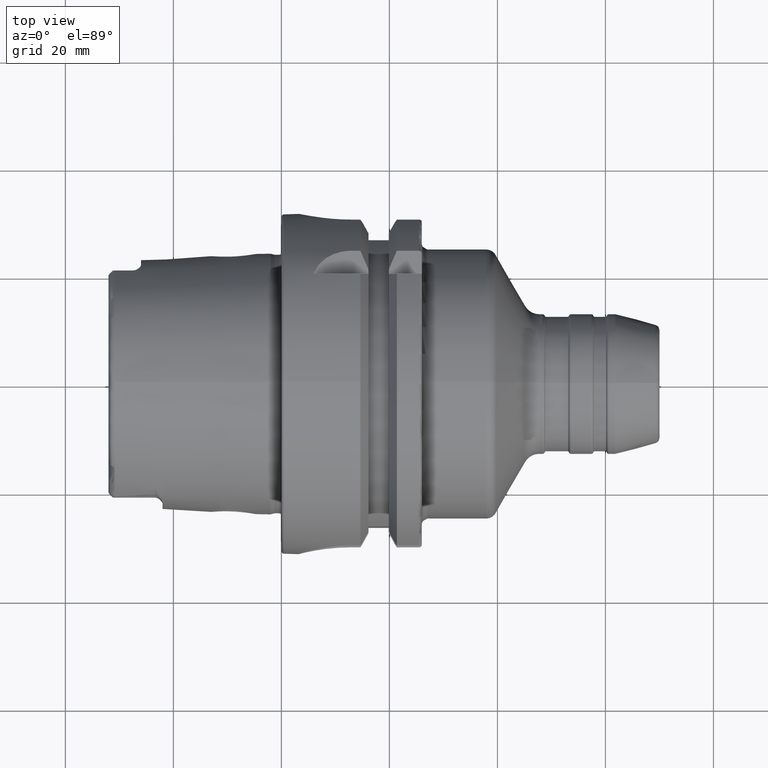
[diagram: clean part render]
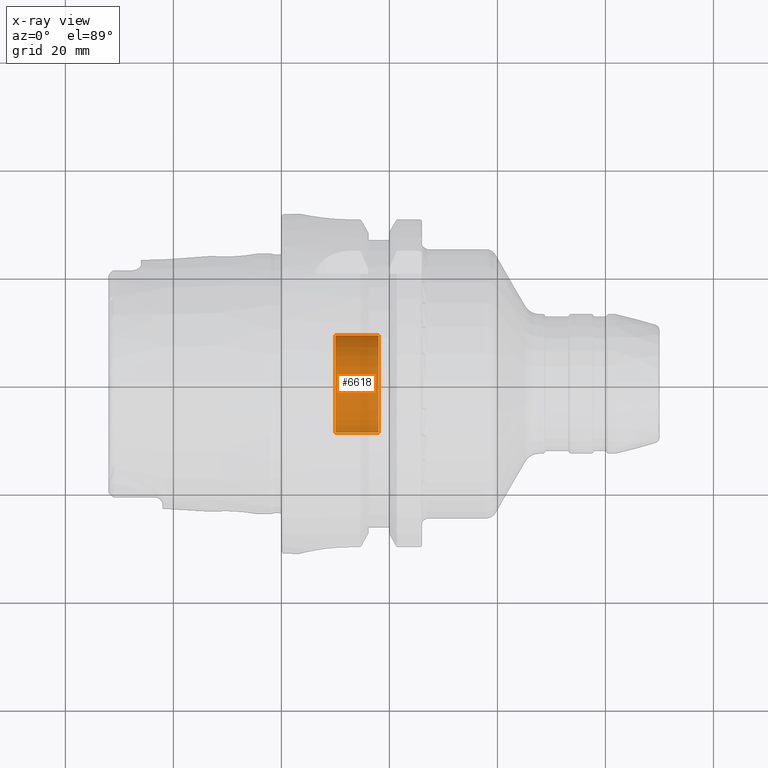
[diagram: x-ray — body ghosted, one internal face saturated and labeled with its STEP entity id]
A machine part, top view, then the same camera in x-ray: the body is ghosted and one INTERNAL B-rep face — a face not visible from any outside direction — is saturated and labeled: STEP entity #6618.
In plain terms, the highlighted cylindrical surface (partial cylindrical patch) has radius 9 mm, axis along (-1, 0, 0).
Its self-contained STEP definition (entity closure, byte-faithful):
#6544=CARTESIAN_POINT('',(1.E1,0.E0,0.E0));
#6545=DIRECTION('',(1.E0,0.E0,0.E0));
#6546=DIRECTION('',(0.E0,1.E0,0.E0));
#6547=AXIS2_PLACEMENT_3D('',#6544,#6545,#6546);
#6549=DIRECTION('',(1.E0,0.E0,0.E0));
#6550=VECTOR('',#6549,8.E0);
#6551=CARTESIAN_POINT('',(1.E1,-9.E0,0.E0));
#6552=LINE('',#6551,#6550);
#6553=DIRECTION('',(1.E0,0.E0,0.E0));
#6554=VECTOR('',#6553,8.E0);
#6555=CARTESIAN_POINT('',(1.E1,9.E0,0.E0));
#6556=LINE('',#6555,#6554);
#6557=CARTESIAN_POINT('',(1.8E1,0.E0,0.E0));
#6558=DIRECTION('',(1.E0,0.E0,0.E0));
#6559=DIRECTION('',(0.E0,1.E0,0.E0));
#6560=AXIS2_PLACEMENT_3D('',#6557,#6558,#6559);
#6577=CARTESIAN_POINT('',(1.8E1,9.E0,0.E0));
#6578=CARTESIAN_POINT('',(1.8E1,-9.E0,0.E0));
#6579=VERTEX_POINT('',#6577);
#6580=VERTEX_POINT('',#6578);
#6581=CARTESIAN_POINT('',(1.E1,9.E0,0.E0));
#6582=CARTESIAN_POINT('',(1.E1,-9.E0,0.E0));
#6583=VERTEX_POINT('',#6581);
#6584=VERTEX_POINT('',#6582);
#6605=CARTESIAN_POINT('',(2.376268102482E1,0.E0,0.E0));
#6606=DIRECTION('',(-1.E0,0.E0,0.E0));
#6607=DIRECTION('',(0.E0,1.E0,0.E0));
#6608=AXIS2_PLACEMENT_3D('',#6605,#6606,#6607);
#6609=CYLINDRICAL_SURFACE('',#6608,9.E0);
#6611=ORIENTED_EDGE('',*,*,#6610,.T.);
#6612=ORIENTED_EDGE('',*,*,#6600,.T.);
#6614=ORIENTED_EDGE('',*,*,#6613,.F.);
#6615=ORIENTED_EDGE('',*,*,#6596,.F.);
#6616=EDGE_LOOP('',(#6611,#6612,#6614,#6615));
#6617=FACE_OUTER_BOUND('',#6616,.F.);
#6618=ADVANCED_FACE('',(#6617),#6609,.F.);
#6548=CIRCLE('',#6547,9.E0);
#6561=CIRCLE('',#6560,9.E0);
#6596=EDGE_CURVE('',#6583,#6579,#6556,.T.);
#6600=EDGE_CURVE('',#6584,#6580,#6552,.T.);
#6610=EDGE_CURVE('',#6583,#6584,#6548,.T.);
#6613=EDGE_CURVE('',#6579,#6580,#6561,.T.);